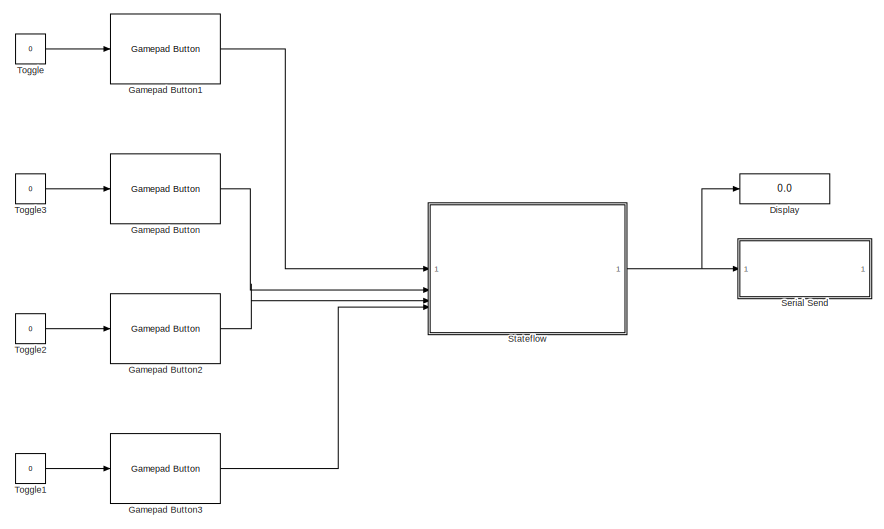
[diagram: root canvas - part 1/2, top center region]
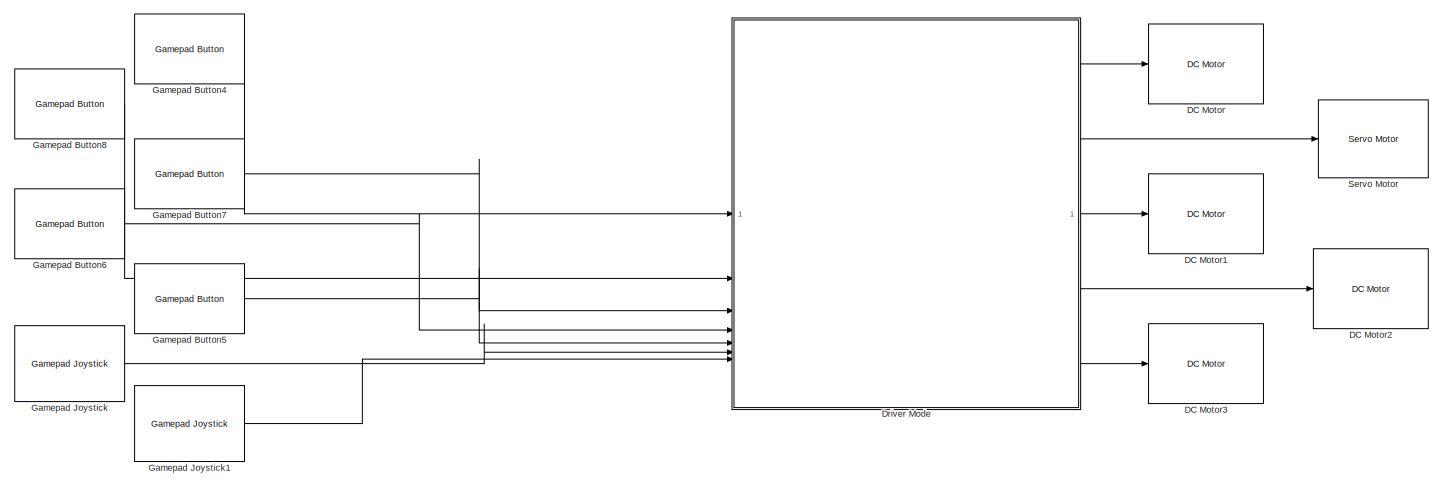
[diagram: root canvas - part 2/2, full width, bottom band]
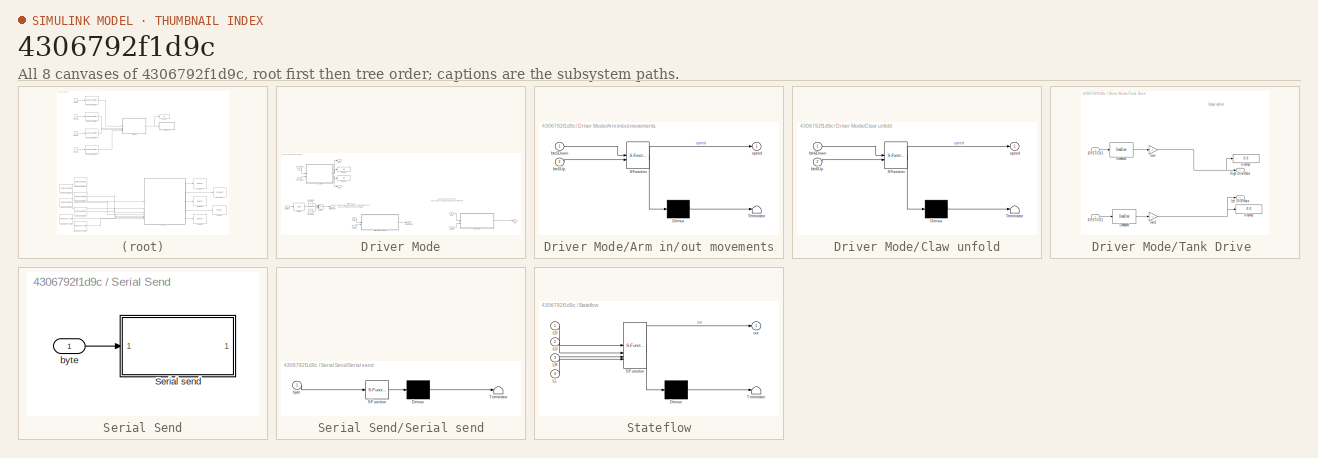
[diagram: thumbnail index - all 8 canvases of the model, root first then tree order]
MODEL slx_4306792f1d9c
KIND model
CONFIG AbsTol = auto
CONFIG EnableMultiTasking = on
CONFIG FixedStep = auto
CONFIG MaxStep = auto
CONFIG MinStep = auto
CONFIG RelTol = 1e-3
CONFIG SampleTimeConstraint = Unconstrained
CONFIG SolverName = FixedStepAuto
CONFIG StartTime = 0.0
CONFIG StopTime = inf
BLOCK [Reference] DC Motor  REF=vexarmcortexlib/Actuators/DC Motor
  SourceBlock = vexarmcortexlib/Actuators/DC Motor
  SourceType = DC Motor
BLOCK [Reference] DC Motor1  REF=vexarmcortexlib/Actuators/DC Motor
  SourceBlock = vexarmcortexlib/Actuators/DC Motor
  SourceType = DC Motor
BLOCK [Reference] DC Motor2  REF=vexarmcortexlib/Actuators/DC Motor
  SourceBlock = vexarmcortexlib/Actuators/DC Motor
  SourceType = DC Motor
BLOCK [Reference] DC Motor3  REF=vexarmcortexlib/Actuators/DC Motor
  SourceBlock = vexarmcortexlib/Actuators/DC Motor
  SourceType = DC Motor
BLOCK [Display] Display
  Decimation = 1
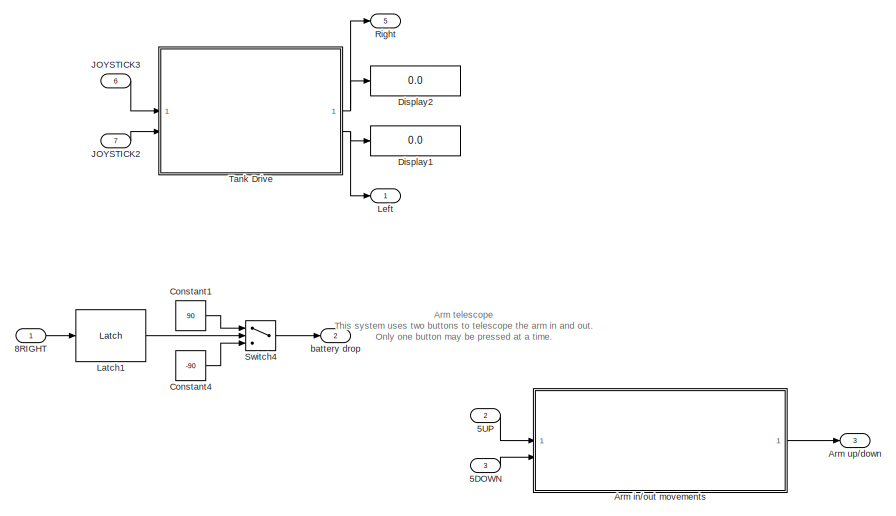
[diagram: Driver Mode - part 1/2, left side, full height]
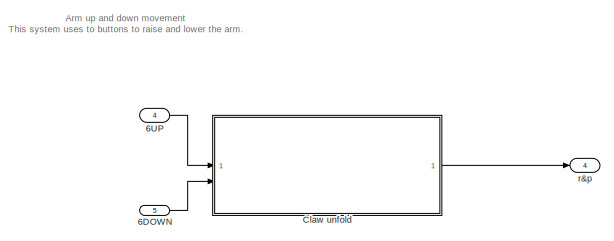
[diagram: Driver Mode - part 2/2, bottom right region]
BLOCK [SubSystem] Driver Mode
  TreatAsAtomicUnit = on
BLOCK [Inport] Driver Mode/5DOWN
  Port = 3
BLOCK [Inport] Driver Mode/5UP
  Port = 2
BLOCK [Inport] Driver Mode/6DOWN
  Port = 5
BLOCK [Inport] Driver Mode/6UP
  Port = 4
BLOCK [Inport] Driver Mode/8RIGHT
BLOCK [SubSystem] Driver Mode/Arm in//out movements
  ErrorFcn = Stateflow.Translate.translate
  PermitHierarchicalResolution = ExplicitOnly
  SFBlockType = Chart
  TreatAsAtomicUnit = on
BLOCK [Demux] Driver Mode/Arm in//out movements/ Demux 
  Outputs = 1
BLOCK [S-Function] Driver Mode/Arm in//out movements/ SFunction 
  EnableBusSupport = on
  FunctionName = sf_sfun
  PortCounts = [2 2]
  SFcnIsStateOwnerBlock = off
  SFunctionDeploymentMode = off
  Tag = Stateflow S-Function 5
BLOCK [Terminator] Driver Mode/Arm in//out movements/ Terminator 
BLOCK [Inport] Driver Mode/Arm in//out movements/btn5Down
BLOCK [Inport] Driver Mode/Arm in//out movements/btn5Up
  Port = 2
BLOCK [Outport] Driver Mode/Arm in//out movements/speed
BLOCK [Outport] Driver Mode/Arm up//down
  Port = 3
BLOCK [SubSystem] Driver Mode/Claw unfold
  ErrorFcn = Stateflow.Translate.translate
  PermitHierarchicalResolution = ExplicitOnly
  SFBlockType = Chart
  TreatAsAtomicUnit = on
BLOCK [Demux] Driver Mode/Claw unfold/ Demux 
  Outputs = 1
BLOCK [S-Function] Driver Mode/Claw unfold/ SFunction 
  EnableBusSupport = on
  FunctionName = sf_sfun
  PortCounts = [2 2]
  SFcnIsStateOwnerBlock = off
  SFunctionDeploymentMode = off
  Tag = Stateflow S-Function 6
BLOCK [Terminator] Driver Mode/Claw unfold/ Terminator 
BLOCK [Inport] Driver Mode/Claw unfold/btn6Down
BLOCK [Inport] Driver Mode/Claw unfold/btn6Up
  Port = 2
BLOCK [Outport] Driver Mode/Claw unfold/speed
BLOCK [Constant] Driver Mode/Constant1
  Value = 90
BLOCK [Constant] Driver Mode/Constant4
  Value = -90
BLOCK [Display] Driver Mode/Display1
  Decimation = 1
BLOCK [Display] Driver Mode/Display2
  Decimation = 1
BLOCK [Inport] Driver Mode/JOYSTICK2
  Port = 7
BLOCK [Inport] Driver Mode/JOYSTICK3
  Port = 6
BLOCK [Reference] Driver Mode/Latch1  REF=vexcommonlib/Latch
  SourceBlock = vexcommonlib/Latch
  SourceType = Latch
BLOCK [Outport] Driver Mode/Left
BLOCK [Outport] Driver Mode/Right
  Port = 5
BLOCK [Switch] Driver Mode/Switch4
  InputSameDT = off
  SaturateOnIntegerOverflow = off
  Threshold = 1
BLOCK [SubSystem] Driver Mode/Tank Drive 
  TreatAsAtomicUnit = on
BLOCK [DeadZone] Driver Mode/Tank Drive /Deadband
  LowerValue = -9
  UpperValue = 9
BLOCK [DeadZone] Driver Mode/Tank Drive /Deadband1
  LowerValue = -9
  UpperValue = 9
BLOCK [Display] Driver Mode/Tank Drive /Display1
  Decimation = 1
BLOCK [Display] Driver Mode/Tank Drive /Display2
  Decimation = 1
BLOCK [Gain] Driver Mode/Tank Drive /Gain
  Gain = -1
BLOCK [Gain] Driver Mode/Tank Drive /Gain1
  Gain = -1
BLOCK [Inport] Driver Mode/Tank Drive /JOYSTICK2
  Port = 2
BLOCK [Inport] Driver Mode/Tank Drive /JOYSTICK3
BLOCK [Outport] Driver Mode/Tank Drive /Left Drive Motor
  Port = 2
BLOCK [Outport] Driver Mode/Tank Drive /Right Drive Motor
BLOCK [Outport] Driver Mode/battery drop
  Port = 2
BLOCK [Outport] Driver Mode/r&p
  Port = 4
BLOCK [Reference] Gamepad Button  REF=vexarmcortexlib/Gamepad/Gamepad Button
  SourceBlock = vexarmcortexlib/Gamepad/Gamepad Button
  SourceType = Gamepad Button
BLOCK [Reference] Gamepad Button1  REF=vexarmcortexlib/Gamepad/Gamepad Button
  SourceBlock = vexarmcortexlib/Gamepad/Gamepad Button
  SourceType = Gamepad Button
BLOCK [Reference] Gamepad Button2  REF=vexarmcortexlib/Gamepad/Gamepad Button
  SourceBlock = vexarmcortexlib/Gamepad/Gamepad Button
  SourceType = Gamepad Button
BLOCK [Reference] Gamepad Button3  REF=vexarmcortexlib/Gamepad/Gamepad Button
  SourceBlock = vexarmcortexlib/Gamepad/Gamepad Button
  SourceType = Gamepad Button
BLOCK [Reference] Gamepad Button4  REF=vexarmcortexlib/Gamepad/Gamepad Button
  SourceBlock = vexarmcortexlib/Gamepad/Gamepad Button
  SourceType = Gamepad Button
BLOCK [Reference] Gamepad Button5  REF=vexarmcortexlib/Gamepad/Gamepad Button
  SourceBlock = vexarmcortexlib/Gamepad/Gamepad Button
  SourceType = Gamepad Button
BLOCK [Reference] Gamepad Button6  REF=vexarmcortexlib/Gamepad/Gamepad Button
  SourceBlock = vexarmcortexlib/Gamepad/Gamepad Button
  SourceType = Gamepad Button
BLOCK [Reference] Gamepad Button7  REF=vexarmcortexlib/Gamepad/Gamepad Button
  SourceBlock = vexarmcortexlib/Gamepad/Gamepad Button
  SourceType = Gamepad Button
BLOCK [Reference] Gamepad Button8  REF=vexarmcortexlib/Gamepad/Gamepad Button
  SourceBlock = vexarmcortexlib/Gamepad/Gamepad Button
  SourceType = Gamepad Button
BLOCK [Reference] Gamepad Joystick  REF=vexarmcortexlib/Gamepad/Gamepad Joystick
  SourceBlock = vexarmcortexlib/Gamepad/Gamepad Joystick
  SourceType = Gamepad Joystick
BLOCK [Reference] Gamepad Joystick1  REF=vexarmcortexlib/Gamepad/Gamepad Joystick
  SourceBlock = vexarmcortexlib/Gamepad/Gamepad Joystick
  SourceType = Gamepad Joystick
BLOCK [SubSystem] Serial Send
BLOCK [SubSystem] Serial Send/Serial send
  ErrorFcn = Stateflow.Translate.translate
  PermitHierarchicalResolution = ExplicitOnly
  SFBlockType = MATLAB Function
  TreatAsAtomicUnit = on
BLOCK [Demux] Serial Send/Serial send/ Demux 
  Outputs = 1
BLOCK [S-Function] Serial Send/Serial send/ SFunction 
  EnableBusSupport = on
  FunctionName = sf_sfun
  PortCounts = [1 1]
  SFcnIsStateOwnerBlock = off
  SFunctionDeploymentMode = off
  Tag = Stateflow S-Function 3
BLOCK [Terminator] Serial Send/Serial send/ Terminator 
BLOCK [Inport] Serial Send/Serial send/byte
BLOCK [Inport] Serial Send/byte
  OutDataTypeStr = uint8
  PortDimensions = [1 1]
BLOCK [Reference] Servo Motor  REF=vexarmcortexlib/Actuators/Servo Motor
  SourceBlock = vexarmcortexlib/Actuators/Servo Motor
  SourceType = Servo Motor
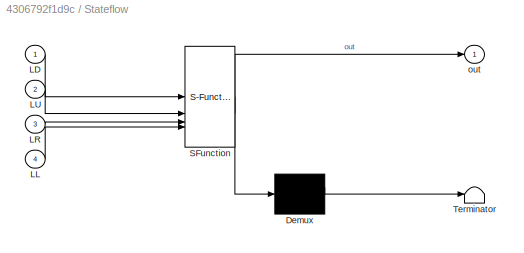
BLOCK [SubSystem] Stateflow
  ErrorFcn = Stateflow.Translate.translate
  PermitHierarchicalResolution = ExplicitOnly
  SFBlockType = Chart
  TreatAsAtomicUnit = on
BLOCK [Demux] Stateflow/ Demux 
  Outputs = 1
BLOCK [S-Function] Stateflow/ SFunction 
  EnableBusSupport = on
  FunctionName = sf_sfun
  PortCounts = [4 2]
  SFcnIsStateOwnerBlock = off
  SFunctionDeploymentMode = off
  Tag = Stateflow S-Function 1
BLOCK [Terminator] Stateflow/ Terminator 
BLOCK [Inport] Stateflow/LD
BLOCK [Inport] Stateflow/LL
  Port = 4
BLOCK [Inport] Stateflow/LR
  Port = 3
BLOCK [Inport] Stateflow/LU
  Port = 2
BLOCK [Outport] Stateflow/out
BLOCK [Constant] Toggle
  OpenFcn = if strcmp('0',get_param(gcb, 'Value'))                        set_param(gcb, 'Value', '1');\nelse                                                                                       \n            set_param(gcb, 'Value', '0');                                                  \nend  <repeated x4 — deduplicated; at blocks: Toggle, Toggle1, Toggle2, Toggle3>
  Value = 0
BLOCK [Constant] Toggle1
  Value = 0
BLOCK [Constant] Toggle2
  Value = 0
BLOCK [Constant] Toggle3
  Value = 0
ANNOTATION Driver Mode: Tank Mode Uses two joysticks inputs to control the two drive motors. Also uses as a button to toggle the speed limit for fine adjustments.
ANNOTATION Driver Mode: Arm telescope This system uses two buttons to telescope the arm in and out. Only one button may be pressed at a time.
ANNOTATION Driver Mode: Arm up and down movement This system uses to buttons to raise and lower the arm.
ANNOTATION Driver Mode/Tank Drive : Output section
LINE Driver Mode/5DOWN:1 -> Driver Mode/Arm in//out movements:2
LINE Driver Mode/5UP:1 -> Driver Mode/Arm in//out movements:1
LINE Driver Mode/6DOWN:1 -> Driver Mode/Claw unfold:2
LINE Driver Mode/6UP:1 -> Driver Mode/Claw unfold:1
LINE Driver Mode/8RIGHT:1 -> Driver Mode/Latch1:1
LINE Driver Mode/Arm in//out movements:1 -> Driver Mode/Arm up//down:1
LINE Driver Mode/Claw unfold:1 -> Driver Mode/r&p:1
LINE Driver Mode/Constant1:1 -> Driver Mode/Switch4:1
LINE Driver Mode/Constant4:1 -> Driver Mode/Switch4:3
LINE Driver Mode/JOYSTICK2:1 -> Driver Mode/Tank Drive :2
LINE Driver Mode/JOYSTICK3:1 -> Driver Mode/Tank Drive :1
LINE Driver Mode/Latch1:1 -> Driver Mode/Switch4:2
LINE Driver Mode/Switch4:1 -> Driver Mode/battery drop:1
LINE Driver Mode/Tank Drive /Deadband1:1 -> Driver Mode/Tank Drive /Gain:1
LINE Driver Mode/Tank Drive /Deadband:1 -> Driver Mode/Tank Drive /Gain1:1
NET Driver Mode/Tank Drive /Gain1:1 -> Driver Mode/Tank Drive /Display2:1, Driver Mode/Tank Drive /Left Drive Motor:1
NET Driver Mode/Tank Drive /Gain:1 -> Driver Mode/Tank Drive /Display1:1, Driver Mode/Tank Drive /Right Drive Motor:1
LINE Driver Mode/Tank Drive /JOYSTICK2:1 -> Driver Mode/Tank Drive /Deadband:1
LINE Driver Mode/Tank Drive /JOYSTICK3:1 -> Driver Mode/Tank Drive /Deadband1:1
NET Driver Mode/Tank Drive :1 -> Driver Mode/Display2:1, Driver Mode/Right:1
NET Driver Mode/Tank Drive :2 -> Driver Mode/Display1:1, Driver Mode/Left:1
LINE Driver Mode:1 -> DC Motor:1
LINE Driver Mode:2 -> Servo Motor:1
LINE Driver Mode:3 -> DC Motor1:1
LINE Driver Mode:4 -> DC Motor2:1
LINE Driver Mode:5 -> DC Motor3:1
LINE Gamepad Button1:1 -> Stateflow:1
LINE Gamepad Button2:1 -> Stateflow:3
LINE Gamepad Button3:1 -> Stateflow:4
LINE Gamepad Button4:1 -> Driver Mode:1
LINE Gamepad Button5:1 -> Driver Mode:5
LINE Gamepad Button6:1 -> Driver Mode:4
LINE Gamepad Button7:1 -> Driver Mode:3
LINE Gamepad Button8:1 -> Driver Mode:2
LINE Gamepad Button:1 -> Stateflow:2
LINE Gamepad Joystick1:1 -> Driver Mode:7
LINE Gamepad Joystick:1 -> Driver Mode:6
LINE Serial Send/byte:1 -> Serial Send/Serial send:1
NET Stateflow:1 -> Display:1, Serial Send:1
LINE Toggle1:1 -> Gamepad Button3:1
LINE Toggle2:1 -> Gamepad Button2:1
LINE Toggle3:1 -> Gamepad Button:1
LINE Toggle:1 -> Gamepad Button1:1
note: NET lines group one-source signal fan-out (src -> all destinations, sorted); 1:1 wires keep LINE
CHART Stateflow states=11 transitions=15
  STATE_LABEL 'Speed Adjustments'
  STATE_LABEL 'speedHigh\nentry:\nout = 0xC3;'
  STATE_LABEL 'speedHigh\nentry:\nout = 0xC3;'
  STATE_LABEL 'Squeaky Movements'
  STATE_LABEL 'LiftMid\nentry:\nout = 0x5A;\n'
  STATE_LABEL 'driveMid\nentry:\nout = 0x33;'
  STATE_LABEL 'rotateMid\nentry:\nout = 0x66;'
  STATE_LABEL 'LiftMid\nentry:\nout = 0x5A;\n'
  STATE_LABEL 'driveMid\nentry:\nout = 0x33;'
  STATE_LABEL 'rotateMid\nentry:\nout = 0x66;'
  STATE_LABEL 'Rotational Adjustments'
  STATE_LABEL 'rotLow\nentry:\nout = 0x69;'
  STATE_LABEL 'RotHigh\nentry:\nout = 0x0F;'
  STATE_LABEL 'rotLow\nentry:\nout = 0x69;'
  STATE_LABEL 'RotHigh\nentry:\nout = 0x0F;'
  STATE_LABEL 'Default_Flash\nentry:\nout = 0xF0;\n'
  STATE_LABEL 'MasterFeildReset\nentry:\nout = 0xAA;\n'
CHART Serial Send/Serial send states=1 transitions=1
  STATE_LABEL 'eML_blk_kernel()'
  STATE_LABEL "SCRIPT:\nfunction fcn(byte)\n% Serial send single byte\n%#codegen\n\n% Config\nport = 'uart1';\nbaud = uint32(600);\n\npersistent isFirstRun\n\nif coder.target('Rtw')\n    coder.cinclude('API.h');\n    coder.cinclude('string.h');\n    file = coder.opaque('FILE *', port,'HeaderFile','API.h');\n\n    if isempty(isFirstRun)\n        % first time setup\n        isFirstRun = false;\n\n        flags = coder.opaque('uint16'...<+126ch>"
CHART Driver Mode/Arm in//out movements states=3 transitions=7
  STATE_LABEL 'ARMDOWN\nentry:\nspeed = -80;'
  STATE_LABEL 'STOPPED\nentry:\nspeed = 0;'
  STATE_LABEL 'ARMUP\nentry:\nspeed = 80;'
CHART Driver Mode/Claw unfold states=3 transitions=7
  STATE_LABEL 'ARMDOWN\nentry:\nspeed = -50;'
  STATE_LABEL 'STOPPED\nentry:\nspeed = 0;'
  STATE_LABEL 'ARMUP\nentry:\nspeed = 140;'
CHART  states=0 transitions=0
CHART  states=0 transitions=0
CHART  states=0 transitions=0
CHART  states=0 transitions=0
